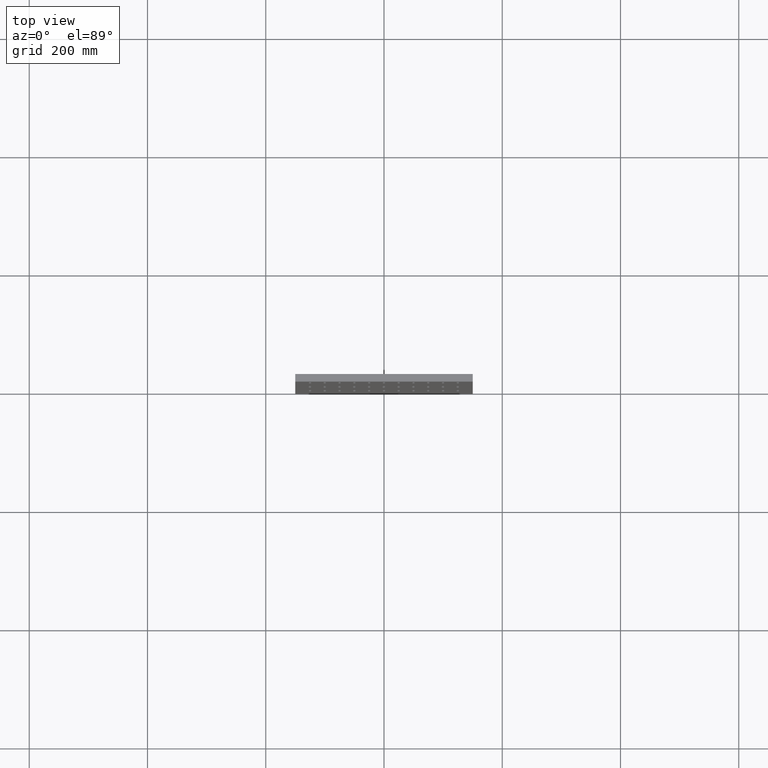
[diagram: clean part render]
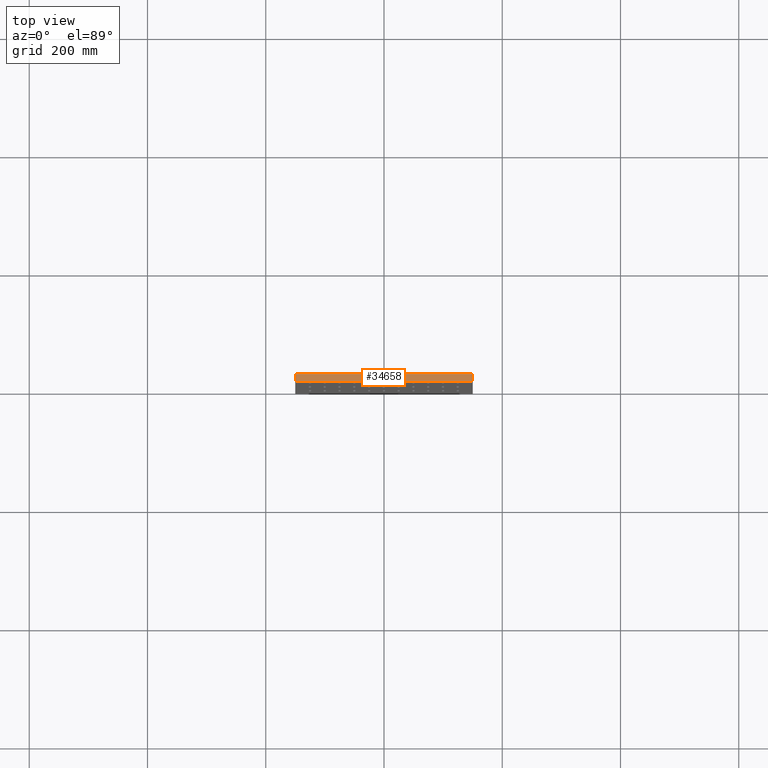
[diagram: same view with one face highlighted and labeled with its STEP entity id]
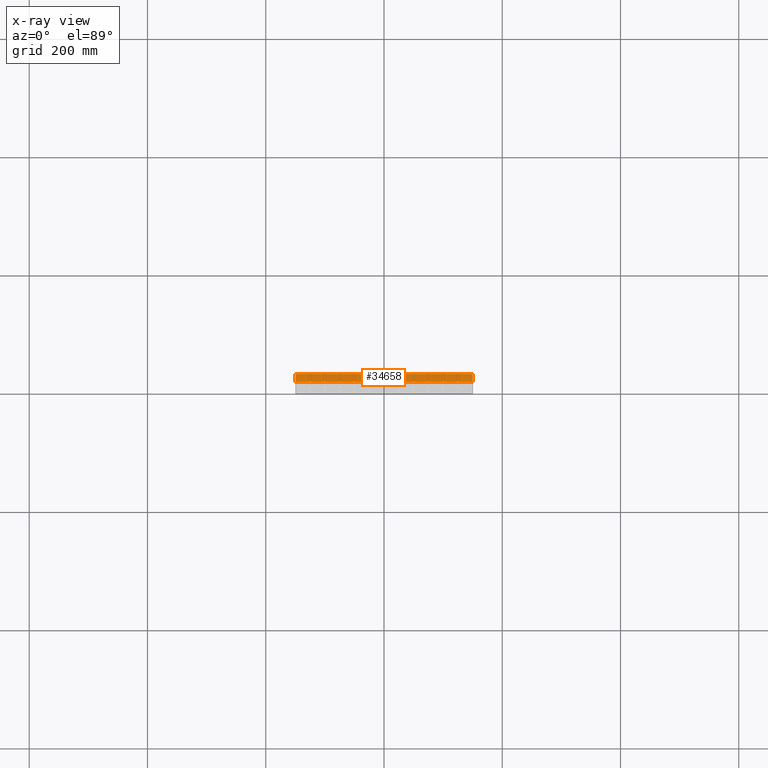
[diagram: x-ray of the same camera — body ghosted, the highlighted face saturated]
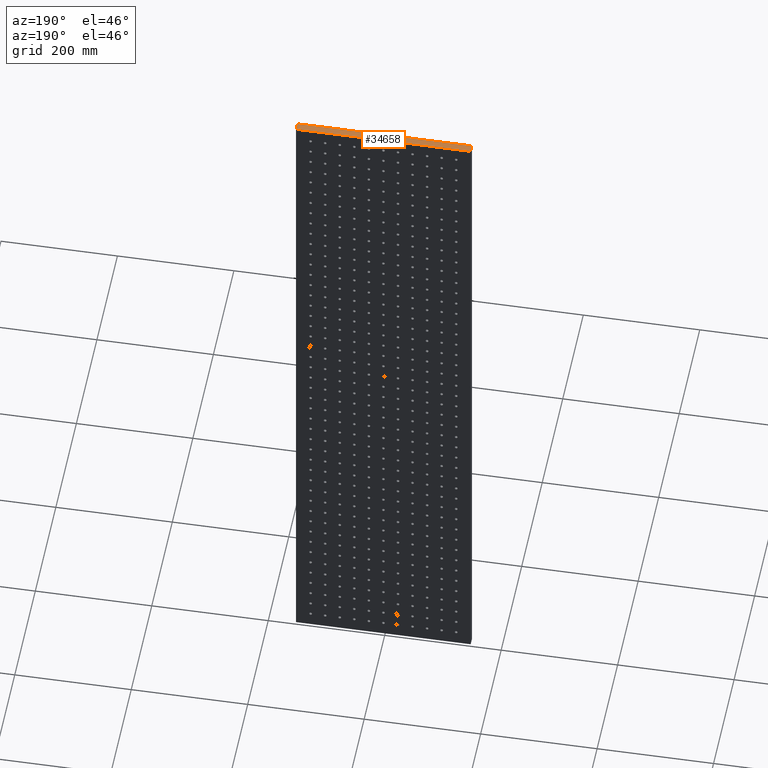
[diagram: same view with one face highlighted and labeled with its STEP entity id]
A machine part, top view. The second image highlights one B-rep face of the part: STEP entity #34658.
The next image is the same camera in x-ray: the body ghosted, the highlighted face saturated — about 0% of this face is hidden behind the body in this view.
A second angle (auxiliary view) of the same face is appended — the face is thin or edge-on in the first view.
In plain terms, the highlighted planar face has unit normal (0, 0, -1).
Its self-contained STEP definition (entity closure, byte-faithful):
#494 = DIRECTION ( 'NONE',  ( -1.000000000000000000, 0.000000000000000000, -0.000000000000000000 ) ) ;
#943 = VERTEX_POINT ( 'NONE', #26871 ) ;
#1080 = DIRECTION ( 'NONE',  ( 0.000000000000000000, 0.000000000000000000, -1.000000000000000000 ) ) ;
#1560 = VERTEX_POINT ( 'NONE', #36658 ) ;
#1633 = CARTESIAN_POINT ( 'NONE',  ( -150.0000000000000000, 13.00000000000000000, 599.9999999999998863 ) ) ;
#1832 = ORIENTED_EDGE ( 'NONE', *, *, #29823, .T. ) ;
#2621 = EDGE_CURVE ( 'NONE', #15980, #1560, #13427, .T. ) ;
#3541 = CARTESIAN_POINT ( 'NONE',  ( -150.0000000000000000, 13.00000000000000000, 599.9999999999998863 ) ) ;
#4054 = CARTESIAN_POINT ( 'NONE',  ( -150.0000000000000000, 0.000000000000000000, 599.9999999999998863 ) ) ;
#5825 = CARTESIAN_POINT ( 'NONE',  ( 149.9999999999999716, 13.00000000000000000, 599.9999999999998863 ) ) ;
#7116 = VERTEX_POINT ( 'NONE', #20436 ) ;
#8182 = VECTOR ( 'NONE', #13625, 1000.000000000000000 ) ;
#8734 = ORIENTED_EDGE ( 'NONE', *, *, #37471, .F. ) ;
#12264 = VECTOR ( 'NONE', #32918, 1000.000000000000000 ) ;
#13427 = LINE ( 'NONE', #22778, #8182 ) ;
#13625 = DIRECTION ( 'NONE',  ( -0.000000000000000000, -1.000000000000000000, -0.000000000000000000 ) ) ;
#15980 = VERTEX_POINT ( 'NONE', #1633 ) ;
#16500 = VECTOR ( 'NONE', #26841, 1000.000000000000000 ) ;
#19645 = EDGE_CURVE ( 'NONE', #15980, #943, #27490, .T. ) ;
#20436 = CARTESIAN_POINT ( 'NONE',  ( 149.9999999999999716, 0.000000000000000000, 599.9999999999998863 ) ) ;
#22778 = CARTESIAN_POINT ( 'NONE',  ( -150.0000000000000000, 13.00000000000000000, 599.9999999999998863 ) ) ;
#23552 = ORIENTED_EDGE ( 'NONE', *, *, #19645, .F. ) ;
#24238 = FACE_OUTER_BOUND ( 'NONE', #38214, .T. ) ;
#25804 = LINE ( 'NONE', #4054, #29194 ) ;
#26841 = DIRECTION ( 'NONE',  ( -0.000000000000000000, -1.000000000000000000, -0.000000000000000000 ) ) ;
#26871 = CARTESIAN_POINT ( 'NONE',  ( 149.9999999999999716, 13.00000000000000000, 599.9999999999998863 ) ) ;
#27340 = PLANE ( 'NONE',  #28901 ) ;
#27490 = LINE ( 'NONE', #3541, #12264 ) ;
#28901 = AXIS2_PLACEMENT_3D ( 'NONE', #30636, #1080, #494 ) ;
#29063 = DIRECTION ( 'NONE',  ( 1.000000000000000000, 0.000000000000000000, 0.000000000000000000 ) ) ;
#29194 = VECTOR ( 'NONE', #29063, 1000.000000000000000 ) ;
#29823 = EDGE_CURVE ( 'NONE', #1560, #7116, #25804, .T. ) ;
#30636 = CARTESIAN_POINT ( 'NONE',  ( -150.0000000000000000, 13.00000000000000000, 599.9999999999998863 ) ) ;
#32477 = LINE ( 'NONE', #5825, #16500 ) ;
#32918 = DIRECTION ( 'NONE',  ( 1.000000000000000000, 0.000000000000000000, 0.000000000000000000 ) ) ;
#34319 = ORIENTED_EDGE ( 'NONE', *, *, #2621, .T. ) ;
#34658 = ADVANCED_FACE ( 'NONE', ( #24238 ), #27340, .F. ) ;
#36658 = CARTESIAN_POINT ( 'NONE',  ( -150.0000000000000000, 0.000000000000000000, 599.9999999999998863 ) ) ;
#37471 = EDGE_CURVE ( 'NONE', #943, #7116, #32477, .T. ) ;
#38214 = EDGE_LOOP ( 'NONE', ( #1832, #8734, #23552, #34319 ) ) ;